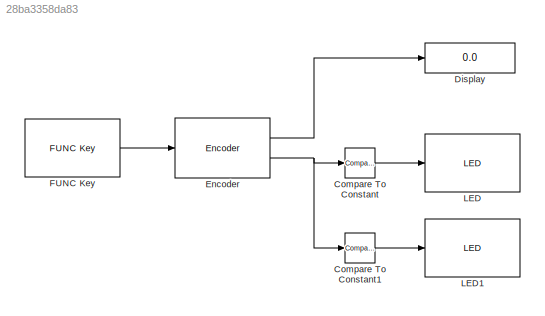
MODEL slx_28ba3358da83
KIND model
BLOCK [Reference] Compare To Constant  REF=simulink/Logic and Bit
Operations/Compare
To Constant
  OutDataTypeStr = uint8
  Ports = [1, 1]
  SourceBlock = simulink/Logic and Bit\nOperations/Compare\nTo Constant
  SourceType = Compare To Constant
  ZeroCross = on
  const = 2
  relop = ==
BLOCK [Reference] Compare To Constant1  REF=simulink/Logic and Bit
Operations/Compare
To Constant
  OutDataTypeStr = uint8
  Ports = [1, 1]
  SourceBlock = simulink/Logic and Bit\nOperations/Compare\nTo Constant
  SourceType = Compare To Constant
  ZeroCross = on
  const = 1
  relop = ==
BLOCK [Display] Display
  Decimation = 1
  Ports = [1]
BLOCK [Reference] Encoder  REF=microdaq_lib/Motor Control/Encoder  (lib defined in slx_912f07ce28e3)
  Ports = [1, 2]
  SampleTime = 0
  SourceBlock = microdaq_lib/Motor Control/Encoder
  SourceType = Encoder block
  pChannel = ENC1
BLOCK [Reference] FUNC Key  REF=microdaq_lib/Utilities/FUNC Key  (lib defined in slx_912f07ce28e3)
  Ports = [0, 1]
  SampleTime = -1
  SourceBlock = microdaq_lib/Utilities/FUNC Key
  SourceType = FUNC Key
  pDIOFuncKey = F1
BLOCK [Reference] LED  REF=microdaq_lib/Utilities/LED  (lib defined in slx_912f07ce28e3)
  Ports = [1]
  SParameter1 = D1
  SourceBlock = microdaq_lib/Utilities/LED
  SourceType = LED
BLOCK [Reference] LED1  REF=microdaq_lib/Utilities/LED  (lib defined in slx_912f07ce28e3)
  Ports = [1]
  SParameter1 = D2
  SourceBlock = microdaq_lib/Utilities/LED
  SourceType = LED
LINE Compare To Constant1:1 -> LED1:1
LINE Compare To Constant:1 -> LED:1
LINE Encoder:1 -> Display:1
NET Encoder:2 -> Compare To Constant1:1, Compare To Constant:1
LINE FUNC Key:1 -> Encoder:1
note: NET lines group one-source signal fan-out (src -> all destinations, sorted); 1:1 wires keep LINE
